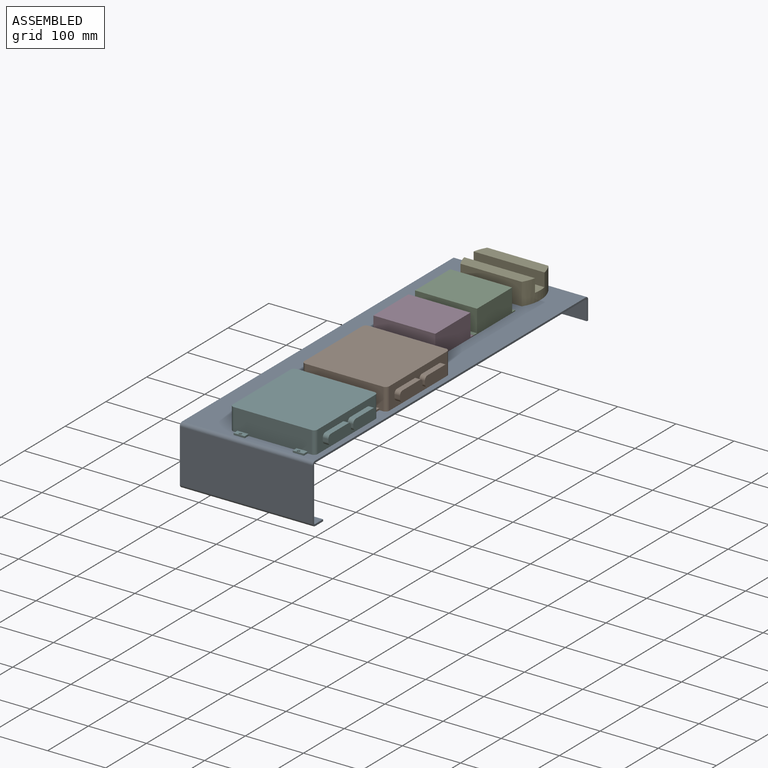
[diagram: assembled view]
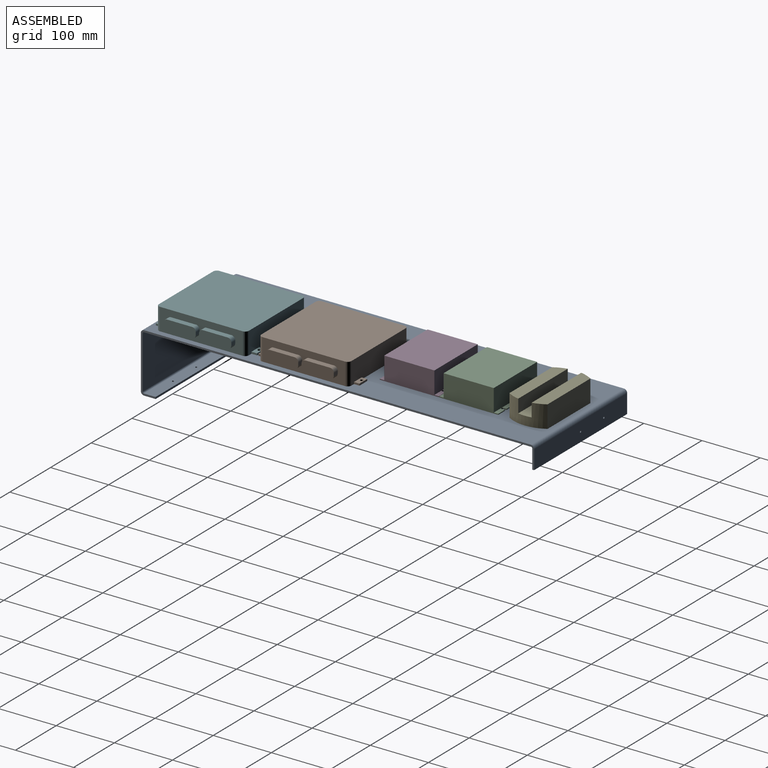
[diagram: assembled view, second angle]
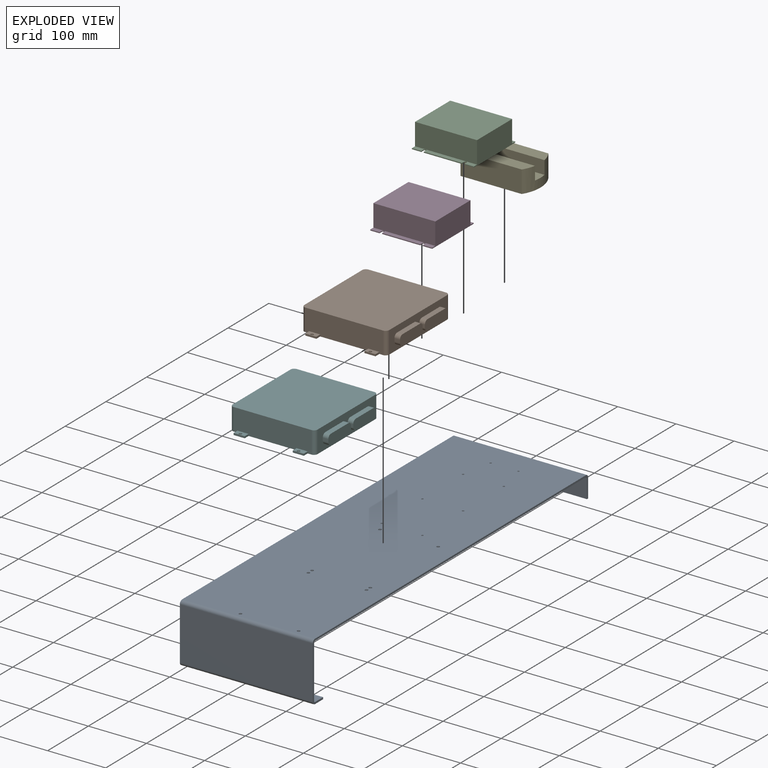
[diagram: exploded view]
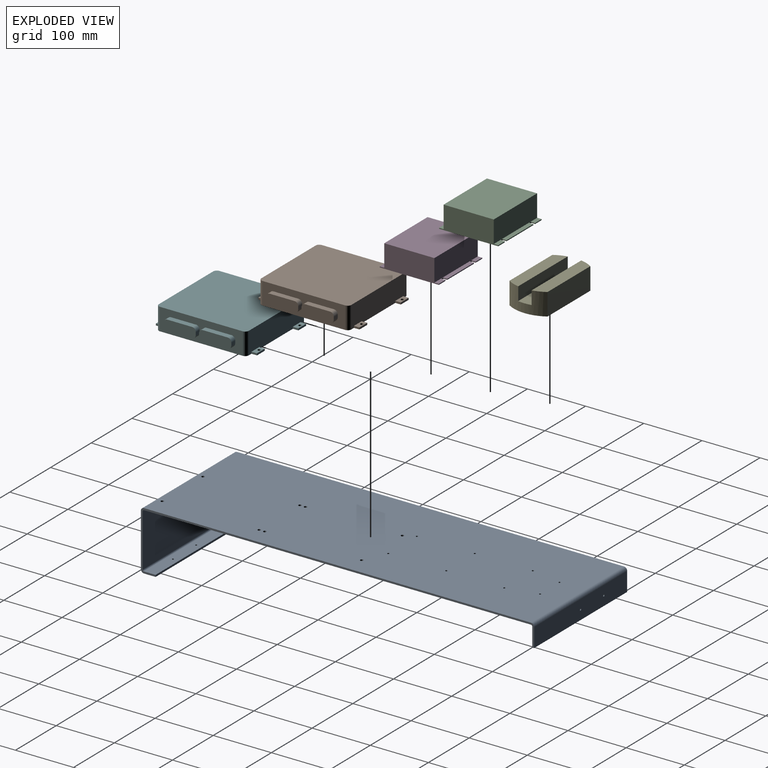
[diagram: exploded view, second angle]
ASSEMBLY  parts=6 mates=5
PART A: 51 faces, bbox 228.6x676.3x101.6 mm
  f0: plane 665.35x3.18mm, normal (-1,0,0), area 2112.5mm2, adj f18,f19,f27,f47
  f1: plane 665.35x3.18mm, normal (1,0,0), area 2112.5mm2, adj f18,f19,f28,f48
  f2: cylinder r=1.73mm len=3.45mm, axis (0,0,1), area 34.5mm2, adj f18,f19
  f3: cylinder r=1.73mm len=3.45mm, axis (0,0,1), area 34.5mm2, adj f18,f19
  f4: cylinder r=1.73mm len=3.45mm, axis (0,0,1), area 34.5mm2, adj f18,f19
  f5: cylinder r=1.73mm len=3.45mm, axis (0,0,1), area 34.5mm2, adj f18,f19
  f6: cylinder r=1.73mm len=3.45mm, axis (0,0,1), area 34.5mm2, adj f18,f19
  f7: cylinder r=1.73mm len=3.45mm, axis (0,0,1), area 34.5mm2, adj f18,f19
  f8: cylinder r=1.59mm len=3.18mm, axis (0,0,1), area 31.7mm2, adj f18,f19
  f9: cylinder r=1.59mm len=3.18mm, axis (0,0,1), area 31.7mm2, adj f18,f19
  f10: cylinder r=2.54mm len=5.08mm, axis (0,0,1), area 50.7mm2, adj f18,f19
  f11: cylinder r=2.54mm len=5.08mm, axis (0,0,1), area 50.7mm2, adj f18,f19
  f12: cylinder r=2.54mm len=5.08mm, axis (0,0,1), area 50.7mm2, adj f18,f19
  f13: cylinder r=2.54mm len=5.08mm, axis (0,0,1), area 50.7mm2, adj f18,f19
  f14: cylinder r=2.54mm len=5.08mm, axis (0,0,1), area 50.7mm2, adj f18,f19
  f15: cylinder r=2.54mm len=5.08mm, axis (0,0,1), area 50.7mm2, adj f18,f19
  f16: cylinder r=2.54mm len=5.08mm, axis (0,0,1), area 50.7mm2, adj f18,f19
  f17: cylinder r=2.54mm len=5.08mm, axis (0,0,1), area 50.7mm2, adj f18,f19
  f18: plane 665.35x228.6mm, normal (0,0,-1), area 151865.5mm2, adj f0,f1,f2,f3,f4,f5,f6,f7
  f19: plane 665.35x228.6mm, normal (0,0,1), area 151865.5mm2, adj f0,f1,f2,f3,f4,f5,f6,f7
  f20: plane 228.6x3.18mm, normal (0,0,-1), area 725.8mm2, adj f21,f24,f25,f26
  f21: plane 32.64x3.18mm, normal (1,0,0), area 103.6mm2, adj f20,f25,f26,f28
  f22: cylinder r=1.59mm len=3.18mm, axis (0,-1,0), area 31.7mm2, adj f25,f26
  f23: cylinder r=1.59mm len=3.18mm, axis (0,-1,0), area 31.7mm2, adj f25,f26
  f24: plane 32.64x3.18mm, normal (-1,0,0), area 103.6mm2, adj f20,f25,f26,f27
  f25: plane 228.6x32.64mm, normal (0,-1,0), area 7445.4mm2, adj f20,f21,f22,f23,f24,f30
  f26: plane 228.6x32.64mm, normal (0,1,0), area 7445.4mm2, adj f20,f21,f22,f23,f24,f29
  f27: plane 5.46x5.46mm, normal (-1,0,0), area 19.3mm2, adj f0,f24,f29,f30
  f28: plane 5.46x5.46mm, normal (1,0,0), area 19.3mm2, adj f1,f21,f29,f30
  f29: cylinder r=5.46mm len=228.6mm, axis (-1,0,0), area 1961mm2, adj f19,f26,f27,f28
  f30: cylinder r=2.29mm len=228.6mm, axis (-1,0,0), area 820.9mm2, adj f18,f25,f27,f28
  f31: plane 90.68x3.18mm, normal (-1,0,0), area 287.9mm2, adj f33,f34,f44,f47
  f32: plane 90.68x3.18mm, normal (1,0,0), area 287.9mm2, adj f33,f34,f43,f48
  f33: plane 228.6x90.68mm, normal (0,1,0), area 20729mm2, adj f31,f32,f46,f50
  f34: plane 228.6x90.68mm, normal (0,-1,0), area 20729mm2, adj f31,f32,f45,f49
  f35: plane 228.6x3.18mm, normal (0,1,0), area 725.8mm2, adj f36,f40,f41,f42
  f36: plane 19.94x3.18mm, normal (-1,0,0), area 63.3mm2, adj f35,f41,f42,f44
  f37: cylinder r=1.59mm len=3.18mm, axis (0,0,1), area 31.7mm2, adj f41,f42
  f38: cylinder r=1.59mm len=3.18mm, axis (0,0,1), area 31.7mm2, adj f41,f42
  f39: cylinder r=1.59mm len=3.18mm, axis (0,0,1), area 31.7mm2, adj f41,f42
  f40: plane 19.94x3.18mm, normal (1,0,0), area 63.3mm2, adj f35,f41,f42,f43
  f41: plane 228.6x19.94mm, normal (0,0,1), area 4534.3mm2, adj f35,f36,f37,f38,f39,f40,f46
  f42: plane 228.6x19.94mm, normal (0,0,-1), area 4534.3mm2, adj f35,f36,f37,f38,f39,f40,f45
  f43: plane 5.46x5.46mm, normal (1,0,0), area 19.3mm2, adj f32,f40,f45,f46
  f44: plane 5.46x5.46mm, normal (-1,0,0), area 19.3mm2, adj f31,f36,f45,f46
  f45: cylinder r=5.46mm len=228.6mm, axis (1,0,0), area 1961mm2, adj f34,f42,f43,f44
  f46: cylinder r=2.29mm len=228.6mm, axis (1,0,0), area 820.9mm2, adj f33,f41,f43,f44
  f47: plane 5.46x5.46mm, normal (-1,0,0), area 19.3mm2, adj f0,f31,f49,f50
  f48: plane 5.46x5.46mm, normal (1,0,0), area 19.3mm2, adj f1,f32,f49,f50
  f49: cylinder r=5.46mm len=228.6mm, axis (-1,0,0), area 1961mm2, adj f19,f34,f47,f48
  f50: cylinder r=2.29mm len=228.6mm, axis (-1,0,0), area 820.9mm2, adj f18,f33,f47,f48
PART B: 48 faces, bbox 155.6x173.8x38.1 mm
  f0: plane 133.35x38.1mm, normal (0,1,0), area 4959.7mm2, adj f4,f5,f8,f9,f36,f38,f39,f40
  f1: plane 133.35x38.1mm, normal (0,-1,0), area 4959.7mm2, adj f6,f7,f8,f9,f28,f29,f31,f32
  f2: plane 142.08x38.1mm, normal (-1,0,0), area 3542mm2, adj f5,f6,f8,f9,f10,f11,f12,f13
  f3: plane 142.08x38.1mm, normal (1,0,0), area 5413.3mm2, adj f4,f7,f8,f9
  f4: cylinder r=6.35mm len=38.1mm, axis (0,0,-1), area 380mm2, adj f0,f3,f8,f9
  f5: cylinder r=6.35mm len=38.1mm, axis (0,0,-1), area 380mm2, adj f0,f2,f8,f9
  f6: cylinder r=6.35mm len=38.1mm, axis (0,0,-1), area 380mm2, adj f1,f2,f8,f9
  f7: cylinder r=6.35mm len=38.1mm, axis (0,0,-1), area 380mm2, adj f1,f3,f8,f9
  f8: plane 154.78x146.05mm, normal (0,0,1), area 22571.2mm2, adj f0,f1,f2,f3,f4,f5,f6,f7
  f9: plane 173.83x146.05mm, normal (0,0,-1), area 23215.9mm2, adj f0,f1,f2,f3,f4,f5,f6,f7
  f10: cylinder r=6.35mm len=9.53mm, axis (1,0,0), area 95mm2, adj f2,f11,f17,f18
  f11: plane 42.86x9.53mm, normal (0,0,1), area 408.3mm2, adj f2,f10,f12,f18
  f12: cylinder r=6.35mm len=9.53mm, axis (1,0,0), area 95mm2, adj f2,f11,f13,f18
  f13: plane 9.53x4.76mm, normal (0,1,0), area 45.4mm2, adj f2,f12,f14,f18
  f14: cylinder r=6.35mm len=9.53mm, axis (1,0,0), area 95mm2, adj f2,f13,f15,f18
  f15: plane 42.86x9.53mm, normal (0,0,-1), area 408.3mm2, adj f2,f14,f16,f18
  f16: cylinder r=6.35mm len=9.53mm, axis (1,0,0), area 95mm2, adj f2,f15,f17,f18
  f17: plane 9.53x4.76mm, normal (0,-1,0), area 45.4mm2, adj f2,f10,f16,f18
  f18: plane 55.56x17.46mm, normal (-1,0,0), area 935.6mm2, adj f10,f11,f12,f13,f14,f15,f16,f17
  f19: cylinder r=6.35mm len=9.53mm, axis (1,0,0), area 95mm2, adj f2,f20,f26,f27
  f20: plane 42.86x9.53mm, normal (0,0,-1), area 408.3mm2, adj f2,f19,f21,f27
  f21: cylinder r=6.35mm len=9.53mm, axis (1,0,0), area 95mm2, adj f2,f20,f22,f27
  f22: plane 9.53x4.76mm, normal (0,-1,0), area 45.4mm2, adj f2,f21,f23,f27
  f23: cylinder r=6.35mm len=9.53mm, axis (1,0,0), area 95mm2, adj f2,f22,f24,f27
  f24: plane 42.86x9.53mm, normal (0,0,1), area 408.3mm2, adj f2,f23,f25,f27
  f25: cylinder r=6.35mm len=9.53mm, axis (1,0,0), area 95mm2, adj f2,f24,f26,f27
  f26: plane 9.53x4.76mm, normal (0,1,0), area 45.4mm2, adj f2,f19,f25,f27
  f27: plane 55.56x17.46mm, normal (-1,0,0), area 935.6mm2, adj f19,f20,f21,f22,f23,f24,f25,f26
  f28: plane 9.53x3.18mm, normal (-1,0,0), area 30.2mm2, adj f1,f9,f30,f31
  f29: plane 9.53x3.18mm, normal (1,0,0), area 30.2mm2, adj f1,f9,f30,f31
  f30: plane 19.05x3.18mm, normal (0,-1,0), area 60.5mm2, adj f9,f28,f29,f31
  f31: plane 19.05x9.53mm, normal (0,0,1), area 161.2mm2, adj f1,f28,f29,f30,f47
  f32: plane 9.53x3.18mm, normal (1,0,0), area 30.2mm2, adj f1,f9,f33,f35
  f33: plane 19.05x3.18mm, normal (0,-1,0), area 60.5mm2, adj f9,f32,f34,f35
  f34: plane 9.53x3.18mm, normal (-1,0,0), area 30.2mm2, adj f1,f9,f33,f35
  f35: plane 19.05x9.53mm, normal (0,0,1), area 161.2mm2, adj f1,f32,f33,f34,f46
  f36: plane 9.53x3.18mm, normal (-1,0,0), area 30.2mm2, adj f0,f9,f37,f39
  f37: plane 19.05x3.18mm, normal (0,1,0), area 60.5mm2, adj f9,f36,f38,f39
  f38: plane 9.53x3.18mm, normal (1,0,0), area 30.2mm2, adj f0,f9,f37,f39
  f39: plane 19.05x9.53mm, normal (0,0,1), area 161.2mm2, adj f0,f36,f37,f38,f45
  f40: plane 9.53x3.18mm, normal (1,0,0), area 30.2mm2, adj f0,f9,f42,f43
  f41: plane 9.53x3.18mm, normal (-1,0,0), area 30.2mm2, adj f0,f9,f42,f43
  f42: plane 19.05x3.18mm, normal (0,1,0), area 60.5mm2, adj f9,f40,f41,f43
  f43: plane 19.05x9.53mm, normal (0,0,1), area 161.2mm2, adj f0,f40,f41,f42,f44
  f44: cylinder r=2.54mm len=5.08mm, axis (0,0,-1), area 50.7mm2, adj f9,f43
  f45: cylinder r=2.54mm len=5.08mm, axis (0,0,-1), area 50.7mm2, adj f9,f39
  f46: cylinder r=2.54mm len=5.08mm, axis (0,0,-1), area 50.7mm2, adj f9,f35
  f47: cylinder r=2.54mm len=5.08mm, axis (0,0,-1), area 50.7mm2, adj f9,f31
PART C: 26 faces, bbox 101.8x106.5x39.6 mm
  f0: plane 16.1x1.59mm, normal (-1,0,0), area 25.6mm2, adj f5,f6,f7,f22
  f1: plane 65.7x1.59mm, normal (-1,0,0), area 104.3mm2, adj f5,f6,f14,f21
  f2: plane 65.7x1.59mm, normal (1,0,0), area 104.3mm2, adj f4,f6,f17,f25
  f3: plane 16.1x1.59mm, normal (1,0,0), area 25.6mm2, adj f4,f6,f7,f19
  f4: plane 106.5x7.73mm, normal (0,0,1), area 762.5mm2, adj f2,f3,f7,f9,f10,f12,f17,f18
  f5: plane 106.5x7.73mm, normal (0,0,1), area 762.5mm2, adj f0,f1,f7,f8,f9,f11,f14,f15
  f6: plane 106.5x101.76mm, normal (0,0,-1), area 10715.9mm2, adj f0,f1,f2,f3,f7,f8,f9,f10
  f7: plane 101.76x39.59mm, normal (0,1,0), area 3440.9mm2, adj f0,f3,f4,f5,f6,f11,f12,f13
  f8: plane 16.1x1.59mm, normal (-1,0,0), area 25.6mm2, adj f5,f6,f9,f16
  f9: plane 101.76x39.59mm, normal (0,-1,0), area 3440.9mm2, adj f4,f5,f6,f8,f10,f11,f12,f13
  f10: plane 16.1x1.59mm, normal (1,0,0), area 25.6mm2, adj f4,f6,f9,f23
  f11: plane 106.5x38mm, normal (-1,0,0), area 4047mm2, adj f5,f7,f9,f13
  f12: plane 106.5x38mm, normal (1,0,0), area 4047mm2, adj f4,f7,f9,f13
  f13: plane 106.5x86.3mm, normal (0,0,1), area 9190.9mm2, adj f7,f9,f11,f12
  f14: plane 5.38x1.59mm, normal (0,-1,0), area 8.5mm2, adj f1,f5,f6,f15
  f15: cylinder r=2.15mm len=4.3mm, axis (0,0,-1), area 10.7mm2, adj f5,f6,f14,f16
  f16: plane 5.38x1.59mm, normal (0,1,0), area 8.5mm2, adj f5,f6,f8,f15
  f17: plane 5.38x1.59mm, normal (0,1,0), area 8.5mm2, adj f2,f4,f6,f18
  f18: cylinder r=2.15mm len=4.3mm, axis (0,0,-1), area 10.7mm2, adj f4,f6,f17,f19
  f19: plane 5.38x1.59mm, normal (0,-1,0), area 8.5mm2, adj f3,f4,f6,f18
  f20: cylinder r=2.15mm len=4.3mm, axis (0,0,-1), area 10.7mm2, adj f5,f6,f21,f22
  f21: plane 5.38x1.59mm, normal (0,1,0), area 8.5mm2, adj f1,f5,f6,f20
  f22: plane 5.38x1.59mm, normal (0,-1,0), area 8.5mm2, adj f0,f5,f6,f20
  f23: plane 5.38x1.59mm, normal (0,1,0), area 8.5mm2, adj f4,f6,f10,f24
  f24: cylinder r=2.15mm len=4.3mm, axis (0,0,-1), area 10.7mm2, adj f4,f6,f23,f25
  f25: plane 5.38x1.59mm, normal (0,-1,0), area 8.5mm2, adj f2,f4,f6,f24
PART D: same geometry as C
PART E: 12 faces, bbox 124x65.5x38.1 mm
  f0: cylinder r=1.59mm len=15.24mm, axis (0,0,-1), area 152mm2, adj f8,f9
  f1: cylinder r=1.59mm len=15.24mm, axis (0,0,-1), area 152mm2, adj f8,f9
  f2: plane 121.62x20.8mm, normal (0,0,1), area 2388.9mm2, adj f4,f5,f6,f11
  f3: plane 105.21x38.1mm, normal (0,1,0), area 4008.6mm2, adj f4,f6,f7,f8
  f4: cylinder r=61.98mm len=65.53mm, axis (0,0,-1), area 2097.1mm2, adj f2,f3,f5,f7,f8,f9,f10,f11
  f5: plane 105.21x38.1mm, normal (0,-1,0), area 4008.6mm2, adj f2,f4,f6,f8
  f6: cylinder r=61.98mm len=65.53mm, axis (0,0,-1), area 2097.1mm2, adj f2,f3,f5,f7,f8,f9,f10,f11
  f7: plane 121.9x21.53mm, normal (0,0,1), area 2478.4mm2, adj f3,f4,f6,f10
  f8: plane 123.95x65.53mm, normal (0,0,-1), area 7710.9mm2, adj f0,f1,f3,f4,f5,f6
  f9: plane 123.95x23.21mm, normal (0,0,1), area 2843.6mm2, adj f0,f1,f4,f6,f10,f11
  f10: plane 121.9x22.86mm, normal (0,-1,0), area 2786.6mm2, adj f4,f6,f7,f9
  f11: plane 121.62x22.86mm, normal (0,1,0), area 2780.2mm2, adj f2,f4,f6,f9
PART F: same geometry as B
PLACE A t=(18.69,56.7,57.22)mm fixed
PLACE B rot(axis=(0,0,-1),180deg) t=(49.97,-8.23,60.4)mm
PLACE C rot(axis=(0,0,-1),90deg) t=(24.61,243.73,60.4)mm
PLACE D rot(axis=(0,0,-1),90deg) t=(24.46,141.54,60.4)mm
PLACE E t=(23.66,345.49,60.4)mm
PLACE F rot(axis=(0,0,-1),180deg) t=(50.08,-184.38,60.4)mm
MATE planar A.f19 <-> C.f6  axis (0,0,1) through (18.65,56.78,60.4)mm
MATE planar F.f9 <-> A.f19  axis (0,0,-1) through (50.08,-184.38,60.4)mm
MATE planar A.f19 <-> B.f9  axis (0,0,1) through (18.65,56.78,60.4)mm
MATE planar D.f6 <-> A.f19  axis (0,0,-1) through (24.46,141.54,60.4)mm
MATE planar E.f4 <-> A.f19  axis (0,0,-1) through (23.66,345.49,60.4)mm
